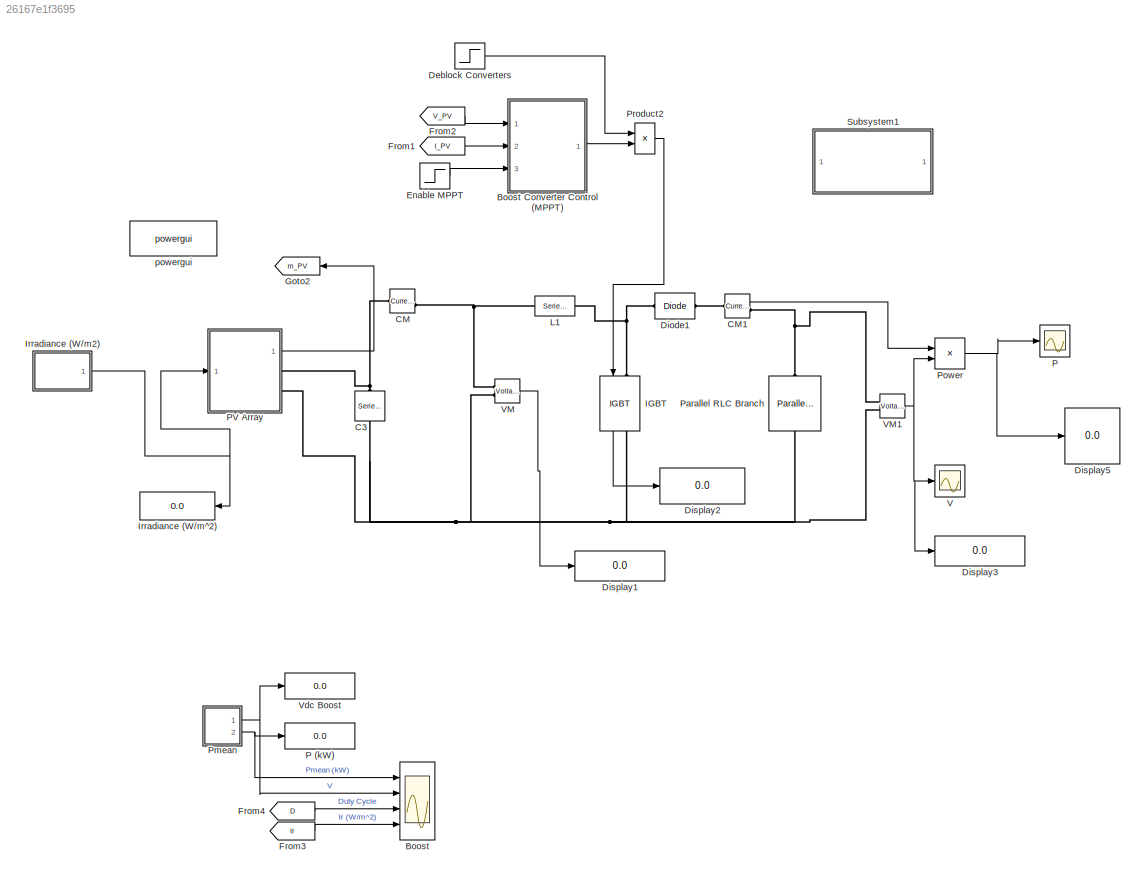
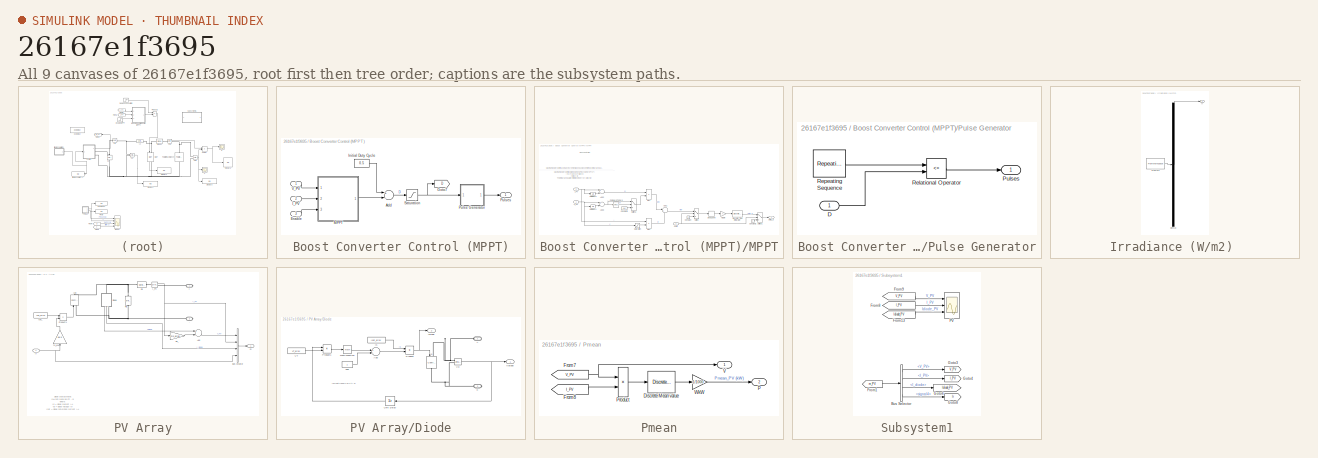
[diagram: thumbnail index - all 9 canvases of the model, root first then tree order]
MODEL slx_26167e1f3695
KIND model
CONFIG AbsTol = auto
CONFIG FixedStep = auto
CONFIG MaxStep = auto
CONFIG MinStep = auto
CONFIG RelTol = 1e-3
CONFIG SampleTimeConstraint = Unconstrained
CONFIG Solver = ode45
CONFIG SolverMode = Auto
CONFIG SolverName = ode45
CONFIG StartTime = 0.0
CONFIG StopTime = 3
BLOCK [Scope] Boost
  DataFormat = StructureWithTime
  Decimation = 100
  Floating = off
  LimitDataPoints = off
  NumInputPorts = 4
  Ports = [4]
  SampleInput = on
  SampleTime = Ts_Control
  SaveName = ScopeData_Boost
  SaveToWorkspace = on
  TimeRange = 3
  YMax = 35~200~1~1000
  YMin = 0~-50~0~200
BLOCK [SubSystem] Boost Converter Control (MPPT)
  Ports = [3, 1]
  RequestExecContextInheritance = off
BLOCK [Sum] Boost Converter Control (MPPT)/Add
  InputSameDT = off
  Inputs = +-
  OutDataTypeStr = Inherit: Inherit via internal rule
  Ports = [2, 1]
  SaturateOnIntegerOverflow = off
BLOCK [Inport] Boost Converter Control (MPPT)/Enable
  IconDisplay = Port number
  Port = 3
BLOCK [Goto] Boost Converter Control (MPPT)/Goto7
  GotoTag = D
  TagVisibility = global
BLOCK [Inport] Boost Converter Control (MPPT)/I_PV
  IconDisplay = Port number
  Port = 2
BLOCK [Constant] Boost Converter Control (MPPT)/Initial Duty Cycle
  Value = 0.5
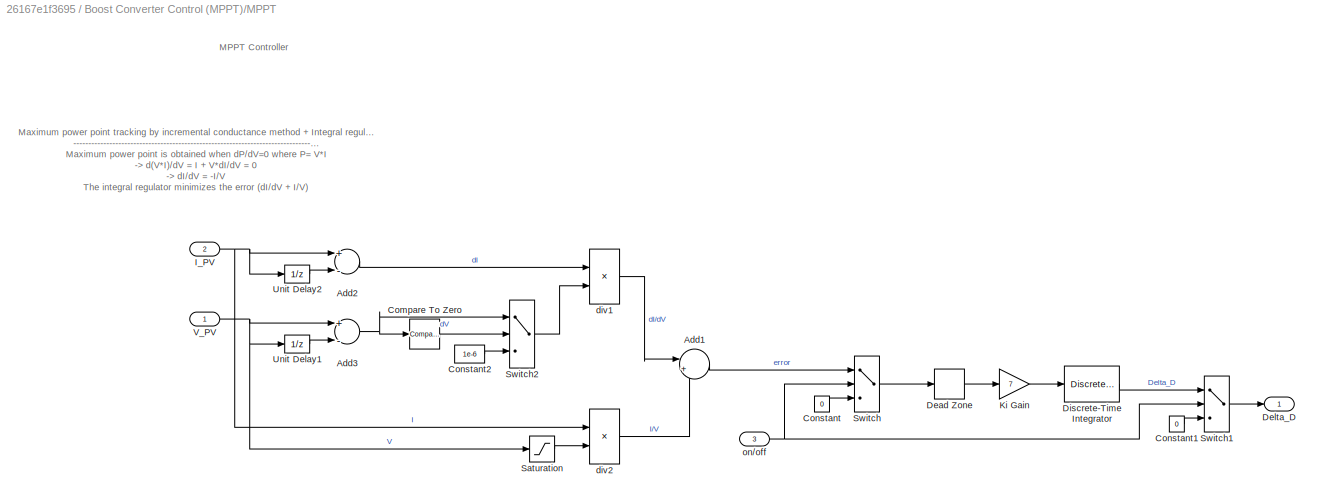
BLOCK [SubSystem] Boost Converter Control (MPPT)/MPPT
  Ports = [3, 1]
  RequestExecContextInheritance = off
BLOCK [Sum] Boost Converter Control (MPPT)/MPPT/Add1
  IconShape = round
  InputSameDT = off
  Inputs = |++
  OutDataTypeStr = Inherit: Inherit via internal rule
  Ports = [2, 1]
  SaturateOnIntegerOverflow = off
BLOCK [Sum] Boost Converter Control (MPPT)/MPPT/Add2
  InputSameDT = off
  Inputs = +-
  OutDataTypeStr = Inherit: Inherit via internal rule
  Ports = [2, 1]
  SaturateOnIntegerOverflow = off
BLOCK [Sum] Boost Converter Control (MPPT)/MPPT/Add3
  InputSameDT = off
  Inputs = +-
  OutDataTypeStr = Inherit: Inherit via internal rule
  Ports = [2, 1]
  SaturateOnIntegerOverflow = off
BLOCK [Reference] Boost Converter Control (MPPT)/MPPT/Compare To Zero  REF=simulink/Logic and Bit
Operations/Compare
To Zero
  OutDataTypeStr = uint8
  Ports = [1, 1]
  SourceBlock = simulink/Logic and Bit\nOperations/Compare\nTo Zero
  SourceType = Compare To Zero
  ZeroCross = on
  relop = ~=
BLOCK [Constant] Boost Converter Control (MPPT)/MPPT/Constant
  Value = 0
BLOCK [Constant] Boost Converter Control (MPPT)/MPPT/Constant1
  Value = 0
BLOCK [Constant] Boost Converter Control (MPPT)/MPPT/Constant2
  Value = 1e-6
BLOCK [DeadZone] Boost Converter Control (MPPT)/MPPT/Dead Zone
  LowerValue = -0.02
  UpperValue = +0.02
BLOCK [Outport] Boost Converter Control (MPPT)/MPPT/Delta_D
  IconDisplay = Port number
BLOCK [DiscreteIntegrator] Boost Converter Control (MPPT)/MPPT/Discrete-Time Integrator
  LimitOutput = on
  LowerSaturationLimit = -1
  Ports = [1, 1]
  SampleTime = Ts_Control
  UpperSaturationLimit = 1
  gainval = 1
BLOCK [Inport] Boost Converter Control (MPPT)/MPPT/I_PV
  IconDisplay = Port number
  Port = 2
BLOCK [Gain] Boost Converter Control (MPPT)/MPPT/Ki Gain
  Gain = 7
  OutDataTypeStr = Inherit: Inherit via internal rule
  ParamDataTypeStr = Inherit: Inherit via internal rule
  SaturateOnIntegerOverflow = off
BLOCK [Saturate] Boost Converter Control (MPPT)/MPPT/Saturation
  InputPortMap = u0
  LowerLimit = eps
  Ports = [1, 1]
  UpperLimit = inf
BLOCK [Switch] Boost Converter Control (MPPT)/MPPT/Switch
  InputSameDT = off
  SaturateOnIntegerOverflow = off
  Threshold = 0.5
BLOCK [Switch] Boost Converter Control (MPPT)/MPPT/Switch1
  InputSameDT = off
  SaturateOnIntegerOverflow = off
  Threshold = 0.5
BLOCK [Switch] Boost Converter Control (MPPT)/MPPT/Switch2
  Criteria = u2 ~= 0
  InputSameDT = off
  SaturateOnIntegerOverflow = off
BLOCK [UnitDelay] Boost Converter Control (MPPT)/MPPT/Unit Delay1
  InputProcessing = Elements as channels (sample based)
  SampleTime = Ts_Control
BLOCK [UnitDelay] Boost Converter Control (MPPT)/MPPT/Unit Delay2
  InputProcessing = Elements as channels (sample based)
  SampleTime = Ts_Control
BLOCK [Inport] Boost Converter Control (MPPT)/MPPT/V_PV
  IconDisplay = Port number
BLOCK [Product] Boost Converter Control (MPPT)/MPPT/div1
  InputSameDT = off
  Inputs = */
  OutDataTypeStr = Inherit: Inherit via internal rule
  Ports = [2, 1]
  SaturateOnIntegerOverflow = off
BLOCK [Product] Boost Converter Control (MPPT)/MPPT/div2
  InputSameDT = off
  Inputs = */
  OutDataTypeStr = Inherit: Inherit via internal rule
  Ports = [2, 1]
  SaturateOnIntegerOverflow = off
BLOCK [Inport] Boost Converter Control (MPPT)/MPPT/on//off
  IconDisplay = Port number
  Port = 3
BLOCK [SubSystem] Boost Converter Control (MPPT)/Pulse Generator
  Ports = [1, 1]
  RequestExecContextInheritance = off
BLOCK [Inport] Boost Converter Control (MPPT)/Pulse Generator/D
  IconDisplay = Port number
BLOCK [Outport] Boost Converter Control (MPPT)/Pulse Generator/Pulses
  IconDisplay = Port number
BLOCK [RelationalOperator] Boost Converter Control (MPPT)/Pulse Generator/Relational Operator
  InputSameDT = off
  Operator = <=
  OutDataTypeStr = boolean
  Ports = [2, 1]
BLOCK [Reference] Boost Converter Control (MPPT)/Pulse Generator/Repeating Sequence  REF=simulink/Sources/Repeating
Sequence
  Ports = [0, 1]
  SourceBlock = simulink/Sources/Repeating\nSequence
  SourceType = Repeating table
  rep_seq_t = [0  1/Freq]
  rep_seq_y = [0 1]
BLOCK [Outport] Boost Converter Control (MPPT)/Pulses
  IconDisplay = Port number
BLOCK [Saturate] Boost Converter Control (MPPT)/Saturation
  InputPortMap = u0
  LowerLimit = 0
  Ports = [1, 1]
  UpperLimit = 1
BLOCK [Inport] Boost Converter Control (MPPT)/V_PV
  IconDisplay = Port number
BLOCK [Reference] C3  REF=powerlib/Elements/Series RLC Branch
  AttributesFormatString = \n
  BranchType = C
  Capacitance = 100e-6
  Inductance = 1.0
  InitialCurrent = 0
  InitialVoltage = 0
  LConnTagsString = __new0
  Measurements = Branch voltage
  Ports = [0, 0, 0, 0, 0, 1, 1]
  RConnTagsString = __new0
  Resistance = 1.0
  SetiL0 = off
  Setx0 = off
  SourceBlock = powerlib/Elements/Series RLC Branch
  SourceType = Series RLC Branch
BLOCK [Reference] CM  REF=powerlib/Measurements/Current Measurement
  OutputType = Complex
  PSBequivalent = 0
  PhasorSimulation = off
  Ports = [0, 1, 0, 0, 0, 1, 1]
  SourceBlock = powerlib/Measurements/Current Measurement
  SourceType = Current Measurement
BLOCK [Reference] CM1  REF=powerlib/Measurements/Current Measurement
  OutputType = Complex
  PSBequivalent = 0
  PhasorSimulation = off
  Ports = [0, 1, 0, 0, 0, 1, 1]
  SourceBlock = powerlib/Measurements/Current Measurement
  SourceType = Current Measurement
BLOCK [Step] Deblock Converters
  SampleTime = 0
  Time = 0.05
BLOCK [Reference] Diode1  REF=powerlib/Power
Electronics/Diode
  Cs = inf
  IC = 0
  Lon = 0
  Measurements = off
  Ports = [0, 0, 0, 0, 0, 1, 1]
  Ron = 1e-4
  Rs = inf
  SourceBlock = powerlib/Power\nElectronics/Diode
  SourceType = Diode
  UseSnubber = off
  Vf = 0
BLOCK [Display] Display1
  Decimation = 1
  Ports = [1]
BLOCK [Display] Display2
  Decimation = 1
  Ports = [1]
BLOCK [Display] Display3
  Decimation = 1
  Ports = [1]
BLOCK [Display] Display5
  Decimation = 1
  Ports = [1]
BLOCK [Step] Enable MPPT
  SampleTime = 0
  Time = 0.4
BLOCK [From] From1
  CloseFcn = tagdialog Close
  GotoTag = I_PV
  TagVisibility = global
BLOCK [From] From2
  CloseFcn = tagdialog Close
  GotoTag = V_PV
  TagVisibility = global
BLOCK [From] From3
  CloseFcn = tagdialog Close
  GotoTag = Ir
  TagVisibility = global
BLOCK [From] From4
  CloseFcn = tagdialog Close
  GotoTag = D
  TagVisibility = global
BLOCK [Goto] Goto2
  GotoTag = m_PV
  TagVisibility = global
BLOCK [Reference] IGBT  REF=powerlib/Power
Electronics/IGBT
  Cs = inf
  IC = 0
  Lon = 0
  Measurements = on
  Ports = [1, 1, 0, 0, 0, 1, 1]
  Ron = 0.001
  Rs = 1e5
  SourceBlock = powerlib/Power\nElectronics/IGBT
  SourceType = IGBT
  Tf = 0
  Tt = 0
  Vf = 0
BLOCK [SubSystem] Irradiance (W//m2) 
  ClipboardFcn = sigbuilder_block('clipboard');
  CloseFcn = sigbuilder_block('close');
  ContinueFcn = sigbuilder_block('continue')
  CopyFcn = sigbuilder_block('copy');
  DeleteFcn = sigbuilder_block('delete');
  LoadFcn = sigbuilder_block('load');
  MaskHideContents = on
  ModelCloseFcn = sigbuilder_block('modelClose');
  NameChangeFcn = sigbuilder_block('namechange');
  OpenFcn = sigbuilder_block('open',[9 136.5 954 513.75 ]);
  PauseFcn = sigbuilder_block('pause')
  Ports = [0, 1]
  PreSaveFcn = sigbuilder_block('preSave');
  RequestExecContextInheritance = off
  StartFcn = sigbuilder_block('start');
  StopFcn = sigbuilder_block('stop');
  Tag = STV Subsys
BLOCK [Demux] Irradiance (W//m2) /Demux
  Outputs = 1
  Ports = [1, 1]
  Tag = STV Demux
BLOCK [FromWorkspace] Irradiance (W//m2) /FromWs
  SampleTime = 0
  Tag = STV FromWs
  VariableName = tuvar
  ZeroCross = on
BLOCK [Outport] Irradiance (W//m2) /Ir
  IconDisplay = Port number
  Tag = STV Outport
BLOCK [Display] Irradiance (W//m^2)
  Decimation = 1000
  Format = bank
  Ports = [1]
BLOCK [Reference] L1  REF=powerlib/Elements/Series RLC Branch
  BranchType = RL
  Capacitance = 1e-6
  Inductance = 5e-3
  InitialCurrent = 0
  InitialVoltage = 0
  LConnTagsString = __new0
  Measurements = None
  Ports = [0, 0, 0, 0, 0, 1, 1]
  RConnTagsString = __new0
  Resistance = 0.005
  SetiL0 = off
  Setx0 = off
  SourceBlock = powerlib/Elements/Series RLC Branch
  SourceType = Series RLC Branch
BLOCK [Scope] P
  Floating = off
  NumInputPorts = 1
  Ports = [1]
  SaveName = ScopeData4
  TimeRange = 1
  YMax = 6e+06
  YMin = -0
BLOCK [Display] P (kW) 
  Decimation = 2000
  Format = bank
  Ports = [1]
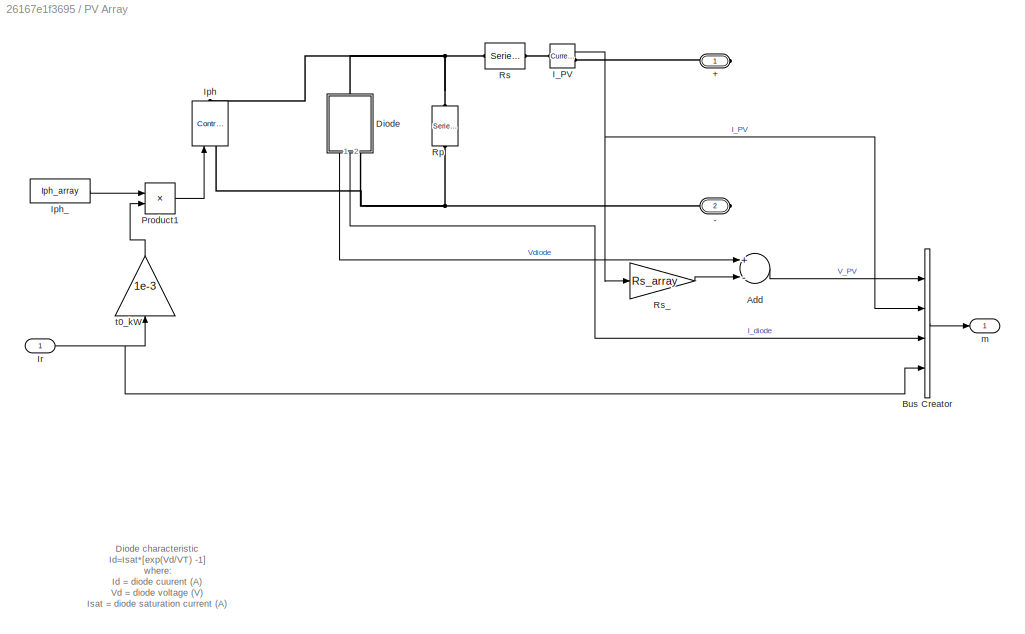
BLOCK [SubSystem] PV Array
  Ports = [1, 1, 0, 0, 0, 0, 2]
  RequestExecContextInheritance = off
BLOCK [PMIOPort] PV Array/+
  Port = 1
  Side = Right
BLOCK [PMIOPort] PV Array/-
  Port = 2
  Side = Right
BLOCK [Sum] PV Array/Add
  InputSameDT = off
  Inputs = +-
  OutDataTypeStr = Inherit: Inherit via internal rule
  Ports = [2, 1]
  SaturateOnIntegerOverflow = off
BLOCK [BusCreator] PV Array/Bus Creator
  DisplayOption = bar
  Ports = [4, 1]
BLOCK [SubSystem] PV Array/Diode
  Ports = [0, 2, 0, 0, 0, 1, 1]
  RequestExecContextInheritance = off
BLOCK [PMIOPort] PV Array/Diode/A
  Port = 1
  Side = Left
BLOCK [Sum] PV Array/Diode/Add
  InputSameDT = off
  Inputs = +-
  OutDataTypeStr = Inherit: Inherit via internal rule
  Ports = [2, 1]
  SaturateOnIntegerOverflow = off
BLOCK [Reference] PV Array/Diode/Id  REF=powerlib/Electrical
Sources/Controlled Current Source
  Amplitude = 0
  Frequency = 0
  Initialize = on
  Measurements = None
  Phase = 0
  Ports = [1, 0, 0, 0, 0, 1, 1]
  SourceBlock = powerlib/Electrical\nSources/Controlled Current Source
  SourceType = Controlled Current Source
  Source_Type = AC
BLOCK [Outport] PV Array/Diode/Idiode
  IconDisplay = Port number
  Port = 2
BLOCK [Constant] PV Array/Diode/Is
  Value = Isat_array
BLOCK [PMIOPort] PV Array/Diode/K
  Port = 2
  Side = Right
BLOCK [Math] PV Array/Diode/Math Function
  Ports = [1, 1]
BLOCK [Product] PV Array/Diode/Product
  InputSameDT = off
  OutDataTypeStr = Inherit: Inherit via internal rule
  Ports = [2, 1]
  SaturateOnIntegerOverflow = off
BLOCK [Product] PV Array/Diode/Product1
  InputSameDT = off
  Inputs = */
  OutDataTypeStr = Inherit: Inherit via internal rule
  Ports = [2, 1]
  SaturateOnIntegerOverflow = off
BLOCK [UnitDelay] PV Array/Diode/Unit Delay
  InputProcessing = Elements as channels (sample based)
  SampleTime = Ts
BLOCK [Constant] PV Array/Diode/VT
  Value = VT_array
BLOCK [Reference] PV Array/Diode/Vd  REF=powerlib/Measurements/Voltage Measurement
  OutputType = Complex
  PSBequivalent = 0
  PhasorSimulation = off
  Ports = [0, 1, 0, 0, 0, 2]
  SourceBlock = powerlib/Measurements/Voltage Measurement
  SourceType = Voltage Measurement
BLOCK [Outport] PV Array/Diode/Vdiode
  IconDisplay = Port number
BLOCK [Constant] PV Array/Diode/one
BLOCK [Reference] PV Array/I_PV  REF=powerlib/Measurements/Current Measurement
  OutputType = Complex
  PSBequivalent = 0
  PhasorSimulation = off
  Ports = [0, 1, 0, 0, 0, 1, 1]
  SourceBlock = powerlib/Measurements/Current Measurement
  SourceType = Current Measurement
BLOCK [Reference] PV Array/Iph  REF=powerlib/Electrical
Sources/Controlled Current Source
  Amplitude = 0
  Frequency = 0
  Initialize = on
  Measurements = None
  Phase = 0
  Ports = [1, 0, 0, 0, 0, 1, 1]
  SourceBlock = powerlib/Electrical\nSources/Controlled Current Source
  SourceType = Controlled Current Source
  Source_Type = AC
BLOCK [Constant] PV Array/Iph_
  Value = Iph_array
BLOCK [Inport] PV Array/Ir
  IconDisplay = Port number
BLOCK [Product] PV Array/Product1
  InputSameDT = off
  Inputs = **
  OutDataTypeStr = Inherit: Inherit via internal rule
  Ports = [2, 1]
  SaturateOnIntegerOverflow = off
BLOCK [Reference] PV Array/Rp  REF=powerlib/Elements/Series RLC Branch
  BranchType = R
  Capacitance = 1e-6
  Inductance = 1e-3
  InitialCurrent = 0
  InitialVoltage = 0
  LConnTagsString = __new0
  Measurements = Branch current
  Ports = [0, 0, 0, 0, 0, 1, 1]
  RConnTagsString = __new0
  Resistance = Rp_array
  SetiL0 = off
  Setx0 = off
  SourceBlock = powerlib/Elements/Series RLC Branch
  SourceType = Series RLC Branch
BLOCK [Reference] PV Array/Rs  REF=powerlib/Elements/Series RLC Branch
  BranchType = R
  Capacitance = 1e-6
  Inductance = 1e-3
  InitialCurrent = 0
  InitialVoltage = 0
  LConnTagsString = __new0
  Measurements = None
  Ports = [0, 0, 0, 0, 0, 1, 1]
  RConnTagsString = __new0
  Resistance = Rs_array
  SetiL0 = off
  Setx0 = off
  SourceBlock = powerlib/Elements/Series RLC Branch
  SourceType = Series RLC Branch
BLOCK [Gain] PV Array/Rs_
  Gain = Rs_array
  OutDataTypeStr = Inherit: Inherit via internal rule
  ParamDataTypeStr = Inherit: Inherit via internal rule
  SaturateOnIntegerOverflow = off
BLOCK [Outport] PV Array/m
  IconDisplay = Port number
BLOCK [Gain] PV Array/t0_kW
  Gain = 1e-3
  OutDataTypeStr = Inherit: Inherit via internal rule
  ParamDataTypeStr = Inherit: Inherit via internal rule
  SaturateOnIntegerOverflow = off
BLOCK [Reference] Parallel RLC Branch  REF=powerlib/Elements/Parallel RLC Branch
  AttributesFormatString = \n
  BranchType = RC
  Capacitance = 1e-6
  Inductance = 1e-3
  InitialCurrent = 0
  InitialVoltage = 0
  LConnTagsString = a
  Measurements = None
  Ports = [0, 0, 0, 0, 0, 1, 1]
  RConnTagsString = __new0
  Resistance = 1e3
  SetiL0 = off
  Setx0 = off
  SourceBlock = powerlib/Elements/Parallel RLC Branch
  SourceType = Parallel RLC Branch
BLOCK [SubSystem] Pmean
  Ports = [0, 2]
  RequestExecContextInheritance = off
BLOCK [Reference] Pmean/Discrete Mean value  REF=powerlib_extras/Discrete
Measurements/Discrete 
Mean value
  Freq = 60
  Ports = [1, 1]
  SourceBlock = powerlib_extras/Discrete\nMeasurements/Discrete \nMean value
  SourceType = Discrete Mean value
  Ts = Ts_Control
  Vinit = 0
BLOCK [From] Pmean/From7
  GotoTag = V_PV
  TagVisibility = global
BLOCK [From] Pmean/From8
  GotoTag = I_PV
  TagVisibility = global
BLOCK [Outport] Pmean/P
  IconDisplay = Port number
  Port = 2
BLOCK [Product] Pmean/Product
  InputSameDT = off
  OutDataTypeStr = Inherit: Inherit via internal rule
  Ports = [2, 1]
  SaturateOnIntegerOverflow = off
BLOCK [Outport] Pmean/V
  IconDisplay = Port number
BLOCK [Gain] Pmean/WkW
  Gain = 1/1000
  OutDataTypeStr = Inherit: Inherit via internal rule
  ParamDataTypeStr = Inherit: Inherit via internal rule
  SaturateOnIntegerOverflow = off
BLOCK [Product] Power
  InputSameDT = off
  OutDataTypeStr = Inherit: Inherit via internal rule
  Ports = [2, 1]
  RndMeth = Floor
  SaturateOnIntegerOverflow = off
BLOCK [Product] Product2
  InputSameDT = off
  OutDataTypeStr = Inherit: Inherit via internal rule
  Ports = [2, 1]
  SaturateOnIntegerOverflow = off
BLOCK [SubSystem] Subsystem1
  Ports = []
  RequestExecContextInheritance = off
BLOCK [BusSelector] Subsystem1/Bus Selector
  OutputSignals = V_PV,I_PV,I_diode,signal4
  Ports = [1, 4]
BLOCK [From] Subsystem1/From1
  GotoTag = m_PV
  TagVisibility = global
BLOCK [From] Subsystem1/From13
  GotoTag = Idiode_PV
  TagVisibility = global
BLOCK [From] Subsystem1/From8
  GotoTag = I_PV
  TagVisibility = global
BLOCK [From] Subsystem1/From9
  GotoTag = V_PV
  TagVisibility = global
BLOCK [Goto] Subsystem1/Goto3
  GotoTag = V_PV
  TagVisibility = global
BLOCK [Goto] Subsystem1/Goto4
  GotoTag = I_PV
  TagVisibility = global
BLOCK [Goto] Subsystem1/Goto6
  GotoTag = Idiode_PV
  TagVisibility = global
BLOCK [Goto] Subsystem1/Goto8
  GotoTag = Ir
  TagVisibility = global
BLOCK [Scope] Subsystem1/PV
  DataFormat = StructureWithTime
  Decimation = 100
  Floating = off
  LimitDataPoints = off
  NumInputPorts = 3
  Ports = [3]
  SampleTime = 0
  SaveName = ScopeData2
  TimeRange = 2
  YMax = 280~400~50
  YMin = 240~0~0
  ZoomMode = yonly
BLOCK [Scope] V
  Floating = off
  NumInputPorts = 1
  Ports = [1]
  SaveName = ScopeData2
  TimeRange = 1
  YMax = 2100
  YMin = 0
BLOCK [Reference] VM  REF=powerlib/Measurements/Voltage Measurement
  OutputType = Complex
  PSBequivalent = 0
  PhasorSimulation = off
  Ports = [0, 1, 0, 0, 0, 2]
  SourceBlock = powerlib/Measurements/Voltage Measurement
  SourceType = Voltage Measurement
BLOCK [Reference] VM1  REF=powerlib/Measurements/Voltage Measurement
  OutputType = Complex
  PSBequivalent = 0
  PhasorSimulation = off
  Ports = [0, 1, 0, 0, 0, 2]
  SourceBlock = powerlib/Measurements/Voltage Measurement
  SourceType = Voltage Measurement
BLOCK [Display] Vdc Boost
  Decimation = 2000
  Format = bank
  Ports = [1]
BLOCK [Reference] powergui  REF=powerlib/powergui
  DisableRonSwitches = off
  DisableSnubberDevices = off
  DisableVfSwitches = off
  DisplayEquations = off
  DisplayStyle = 1
  EnableUseOfTLC = off
  ErrMax = 1e-4
  Frange = [0:2:500]
  FreqAxis = off
  FunctionMessages = off
  HookPort = off
  Interpol = off
  Iterations = 50
  MaxFrequency = 1000
  Pbase = 100e6
  Ports = []
  Priority = 1
  ResistiveCurrentMeasurement = off
  RestoreLinks = warning
  RmsSteady = 1
  SPID = off
  SampleTime = Ts_Power
  ShowGrid = off
  SolverType = Tustin
  SourceBlock = powerlib/powergui
  SourceType = PSB option menu block
  StartTime = 0.0
  SwTol = 0
  Ts = 0
  UnitsV = kV
  UnitsW = MW
  UserDataPersistent = on
  Xlog = on
  Ylog = off
  ZoomFFT = on
  buscounter = 0
  cycles = 1
  display = off
  echomessages = off
  frequency = 60
  frequencyindice = 0
  frequencyindicesteady = 1
  fundamental = 60
  methode = off
  save = off
  structure = 0
  variable = ZData
  x0status = blocks
ANNOTATION Boost Converter Control (MPPT)/MPPT: MPPT Controller
ANNOTATION Boost Converter Control (MPPT)/MPPT: Maximum power point tracking by incremental conductance method + Integral regulator ------------------------------------------------------------------------------------------------------------- Maximum power point is obtained when dP/dV=0 where P= V*I -> d(V*I)/dV = I + V*dI/dV = 0 -> dI/dV = -I/V The integral regulator minimizes the error (dI/dV + I/V) Regulator output = Duty cycle correction
ANNOTATION PV Array: Diode characteristic Id=Isat*[exp(Vd/VT) -1] where: Id = diode cuurent (A) Vd = diode voltage (V) Isat = diode saturation current (A) VT = temperature voltage = k*T/q*Qd*Ncell*Nser T = cell temperature (K), k = Boltzman constant = 1.3806e-23 J.K^-1 q = electron charge = 1.6022e-19 C Qd = diode quality factor Ncell= number of series-connected cells per module Nser = number of series-connected modul...<+13ch>
ANNOTATION PV Array/Diode: Id=Isat*[exp(Vd/Vt)-1]
LINE Boost Converter Control (MPPT)/Add:1 -> Boost Converter Control (MPPT)/Saturation:1
LINE Boost Converter Control (MPPT)/Enable:1 -> Boost Converter Control (MPPT)/MPPT:3
LINE Boost Converter Control (MPPT)/I_PV:1 -> Boost Converter Control (MPPT)/MPPT:2
LINE Boost Converter Control (MPPT)/Initial Duty Cycle:1 -> Boost Converter Control (MPPT)/Add:1
LINE Boost Converter Control (MPPT)/MPPT/Add1:1 -> Boost Converter Control (MPPT)/MPPT/Switch:1
LINE Boost Converter Control (MPPT)/MPPT/Add2:1 -> Boost Converter Control (MPPT)/MPPT/div1:1
NET Boost Converter Control (MPPT)/MPPT/Add3:1 -> Boost Converter Control (MPPT)/MPPT/Compare To Zero:1, Boost Converter Control (MPPT)/MPPT/Switch2:1
LINE Boost Converter Control (MPPT)/MPPT/Compare To Zero:1 -> Boost Converter Control (MPPT)/MPPT/Switch2:2
LINE Boost Converter Control (MPPT)/MPPT/Constant1:1 -> Boost Converter Control (MPPT)/MPPT/Switch1:3
LINE Boost Converter Control (MPPT)/MPPT/Constant2:1 -> Boost Converter Control (MPPT)/MPPT/Switch2:3
LINE Boost Converter Control (MPPT)/MPPT/Constant:1 -> Boost Converter Control (MPPT)/MPPT/Switch:3
LINE Boost Converter Control (MPPT)/MPPT/Dead Zone:1 -> Boost Converter Control (MPPT)/MPPT/Ki Gain:1
LINE Boost Converter Control (MPPT)/MPPT/Discrete-Time Integrator:1 -> Boost Converter Control (MPPT)/MPPT/Switch1:1
NET Boost Converter Control (MPPT)/MPPT/I_PV:1 -> Boost Converter Control (MPPT)/MPPT/Add2:1, Boost Converter Control (MPPT)/MPPT/Unit Delay2:1, Boost Converter Control (MPPT)/MPPT/div2:1
LINE Boost Converter Control (MPPT)/MPPT/Ki Gain:1 -> Boost Converter Control (MPPT)/MPPT/Discrete-Time Integrator:1
LINE Boost Converter Control (MPPT)/MPPT/Saturation:1 -> Boost Converter Control (MPPT)/MPPT/div2:2
LINE Boost Converter Control (MPPT)/MPPT/Switch1:1 -> Boost Converter Control (MPPT)/MPPT/Delta_D:1
LINE Boost Converter Control (MPPT)/MPPT/Switch2:1 -> Boost Converter Control (MPPT)/MPPT/div1:2
LINE Boost Converter Control (MPPT)/MPPT/Switch:1 -> Boost Converter Control (MPPT)/MPPT/Dead Zone:1
LINE Boost Converter Control (MPPT)/MPPT/Unit Delay1:1 -> Boost Converter Control (MPPT)/MPPT/Add3:2
LINE Boost Converter Control (MPPT)/MPPT/Unit Delay2:1 -> Boost Converter Control (MPPT)/MPPT/Add2:2
NET Boost Converter Control (MPPT)/MPPT/V_PV:1 -> Boost Converter Control (MPPT)/MPPT/Add3:1, Boost Converter Control (MPPT)/MPPT/Saturation:1, Boost Converter Control (MPPT)/MPPT/Unit Delay1:1
LINE Boost Converter Control (MPPT)/MPPT/div1:1 -> Boost Converter Control (MPPT)/MPPT/Add1:1
LINE Boost Converter Control (MPPT)/MPPT/div2:1 -> Boost Converter Control (MPPT)/MPPT/Add1:2
NET Boost Converter Control (MPPT)/MPPT/on//off:1 -> Boost Converter Control (MPPT)/MPPT/Switch1:2, Boost Converter Control (MPPT)/MPPT/Switch:2
LINE Boost Converter Control (MPPT)/MPPT:1 -> Boost Converter Control (MPPT)/Add:2
LINE Boost Converter Control (MPPT)/Pulse Generator/D:1 -> Boost Converter Control (MPPT)/Pulse Generator/Relational Operator:2
LINE Boost Converter Control (MPPT)/Pulse Generator/Relational Operator:1 -> Boost Converter Control (MPPT)/Pulse Generator/Pulses:1
LINE Boost Converter Control (MPPT)/Pulse Generator/Repeating Sequence:1 -> Boost Converter Control (MPPT)/Pulse Generator/Relational Operator:1
LINE Boost Converter Control (MPPT)/Pulse Generator:1 -> Boost Converter Control (MPPT)/Pulses:1
NET Boost Converter Control (MPPT)/Saturation:1 -> Boost Converter Control (MPPT)/Goto7:1, Boost Converter Control (MPPT)/Pulse Generator:1
LINE Boost Converter Control (MPPT)/V_PV:1 -> Boost Converter Control (MPPT)/MPPT:1
LINE Boost Converter Control (MPPT):1 -> Product2:2
LINE CM1:1 -> Power:1
LINE Deblock Converters:1 -> Product2:1
LINE Enable MPPT:1 -> Boost Converter Control (MPPT):3
LINE From1:1 -> Boost Converter Control (MPPT):2
LINE From2:1 -> Boost Converter Control (MPPT):1
LINE From3:1 -> Boost:4
LINE From4:1 -> Boost:3
LINE IGBT:1 -> Display2:1
NET Irradiance (W//m2) :1 -> Irradiance (W//m^2):1, PV Array:1
LINE PV Array/Add:1 -> PV Array/Bus Creator:1
LINE PV Array/Bus Creator:1 -> PV Array/m:1
LINE PV Array/Diode/Add:1 -> PV Array/Diode/Product:2
LINE PV Array/Diode/Is:1 -> PV Array/Diode/Product:1
LINE PV Array/Diode/Math Function:1 -> PV Array/Diode/Add:1
LINE PV Array/Diode/Product1:1 -> PV Array/Diode/Math Function:1
NET PV Array/Diode/Product:1 -> PV Array/Diode/Id:1, PV Array/Diode/Idiode:1
LINE PV Array/Diode/Unit Delay:1 -> PV Array/Diode/Product1:1
LINE PV Array/Diode/VT:1 -> PV Array/Diode/Product1:2
NET PV Array/Diode/Vd:1 -> PV Array/Diode/Unit Delay:1, PV Array/Diode/Vdiode:1
LINE PV Array/Diode/one:1 -> PV Array/Diode/Add:2
LINE PV Array/Diode:1 -> PV Array/Add:1
LINE PV Array/Diode:2 -> PV Array/Bus Creator:3
NET PV Array/I_PV:1 -> PV Array/Bus Creator:2, PV Array/Rs_:1
LINE PV Array/Iph_:1 -> PV Array/Product1:1
NET PV Array/Ir:1 -> PV Array/Bus Creator:4, PV Array/t0_kW:1
LINE PV Array/Product1:1 -> PV Array/Iph:1
LINE PV Array/Rs_:1 -> PV Array/Add:2
LINE PV Array/t0_kW:1 -> PV Array/Product1:2
LINE PV Array:1 -> Goto2:1
LINE Pmean/Discrete Mean value:1 -> Pmean/WkW:1
NET Pmean/From7:1 -> Pmean/Product:1, Pmean/V:1
LINE Pmean/From8:1 -> Pmean/Product:2
LINE Pmean/Product:1 -> Pmean/Discrete Mean value:1
LINE Pmean/WkW:1 -> Pmean/P:1
NET Pmean:1 -> Boost:2, Vdc Boost:1
NET Pmean:2 -> Boost:1, P (kW) :1
NET Power:1 -> Display5:1, P:1
LINE Product2:1 -> IGBT:1
LINE Subsystem1/Bus Selector:1 -> Subsystem1/Goto3:1
LINE Subsystem1/Bus Selector:2 -> Subsystem1/Goto4:1
LINE Subsystem1/Bus Selector:3 -> Subsystem1/Goto6:1
LINE Subsystem1/Bus Selector:4 -> Subsystem1/Goto8:1
LINE Subsystem1/From13:1 -> Subsystem1/PV:3
LINE Subsystem1/From1:1 -> Subsystem1/Bus Selector:1
LINE Subsystem1/From8:1 -> Subsystem1/PV:2
LINE Subsystem1/From9:1 -> Subsystem1/PV:1
NET VM1:1 -> Display3:1, Power:2, V:1
LINE VM:1 -> Display1:1
PNET net1: C3:LConn1 -- CM:LConn1 -- PV Array:RConn1
PNET net2: C3:RConn1 -- IGBT:RConn1 -- PV Array:RConn2 -- Parallel RLC Branch:RConn1 -- VM1:LConn2 -- VM:LConn2
PLINE CM1:LConn1 -- Diode1:RConn1
PNET net3: CM1:RConn1 -- Parallel RLC Branch:LConn1 -- VM1:LConn1
PNET net4: CM:RConn1 -- L1:LConn1 -- VM:LConn1
PNET net5: Diode1:LConn1 -- IGBT:LConn1 -- L1:RConn1
PLINE PV Array/+:RConn1 -- PV Array/I_PV:RConn1
PNET net6: PV Array/-:RConn1 -- PV Array/Diode:RConn1 -- PV Array/Iph:LConn1 -- PV Array/Rp:RConn1
PNET net7: PV Array/Diode/A:RConn1 -- PV Array/Diode/Id:LConn1 -- PV Array/Diode/Vd:LConn1
PNET net8: PV Array/Diode/Id:RConn1 -- PV Array/Diode/K:RConn1 -- PV Array/Diode/Vd:LConn2
PNET net9: PV Array/Diode:LConn1 -- PV Array/Iph:RConn1 -- PV Array/Rp:LConn1 -- PV Array/Rs:RConn1
PLINE PV Array/I_PV:LConn1 -- PV Array/Rs:LConn1
note: NET lines group one-source signal fan-out (src -> all destinations, sorted); 1:1 wires keep LINE; PNET lines group multi-terminal physical nets as a canonical sorted terminal list (undirected conserving connections); 2-terminal nets keep the pairwise PLINE form
